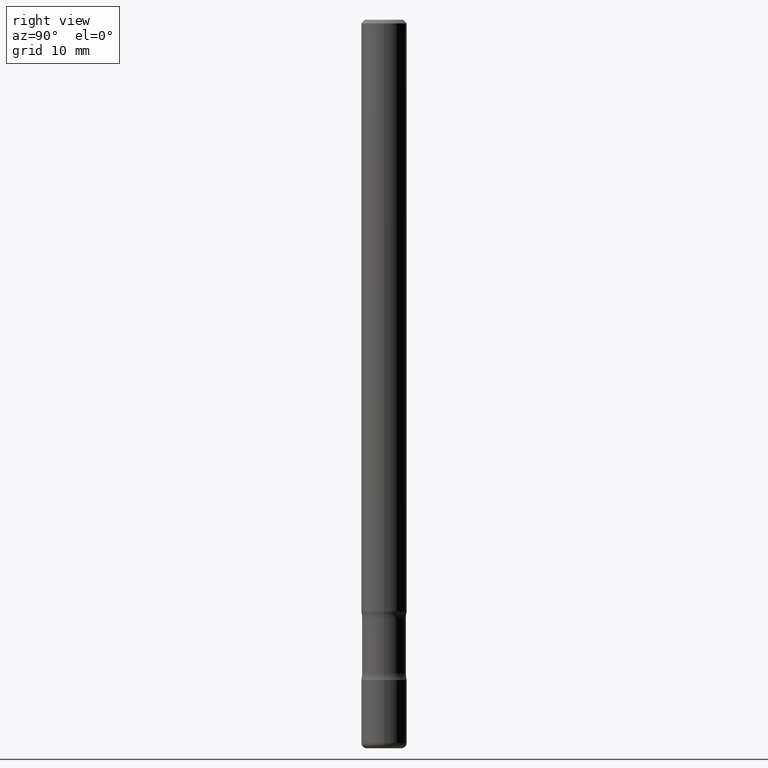
[diagram: clean part render]
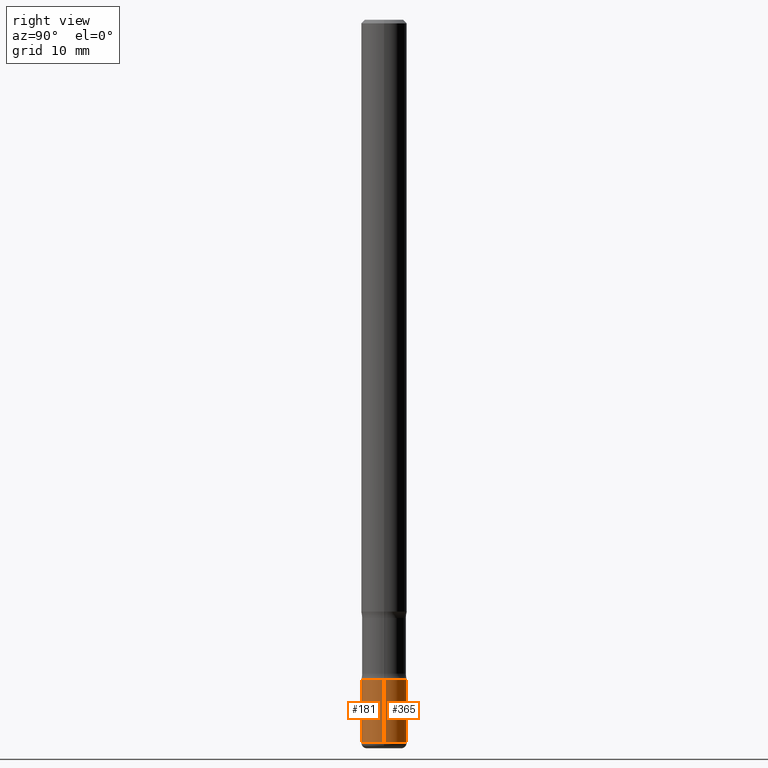
[diagram: same view with one multi-face feature highlighted, each face labeled with its STEP entity id]
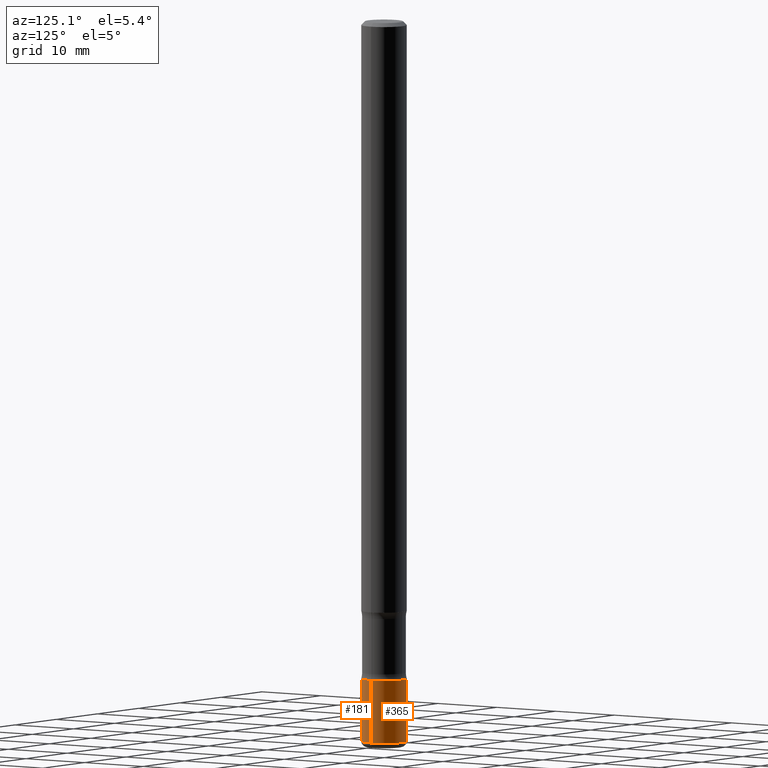
[diagram: same view with one multi-face feature highlighted, each face labeled with its STEP entity id]
A machine part, right view. The highlighted faces form ONE feature: a constant-radius fillet chain: 2 tangent blend faces with common blend radius 3.175 mm. The faces share edges in the B-rep.
A second angle (auxiliary view) of the same feature is appended — it is thin or edge-on in the first view.
Their STEP definitions:
[1] entity #181 (Cylinder):
#14 = EDGE_CURVE ( 'NONE', #263, #758, #792, .T. ) ;
#99 = VERTEX_POINT ( 'NONE', #607 ) ;
#101 = DIRECTION ( 'NONE',  ( 1.000000000000000000, -6.982962677686266711E-15, 4.876176775795935793E-29 ) ) ;
#118 = DIRECTION ( 'NONE',  ( -2.445468806185136597E-29, 3.491481338843145583E-15, 1.000000000000000000 ) ) ;
#130 = CIRCLE ( 'NONE', #734, 0.1250000000000000000 ) ;
#146 = DIRECTION ( 'NONE',  ( -2.445468806185136877E-29, 3.491481338843145188E-15, 1.000000000000000000 ) ) ;
#174 = ORIENTED_EDGE ( 'NONE', *, *, #14, .T. ) ;
#181 = ADVANCED_FACE ( 'NONE', ( #555 ), #784, .T. ) ;
#183 = CARTESIAN_POINT ( 'NONE',  ( 0.1249999999999998473, -1.473405124991807072E-14, -3.970000000000000195 ) ) ;
#220 = DIRECTION ( 'NONE',  ( 1.000000000000000000, -6.982962677686262766E-15, 0.000000000000000000 ) ) ;
#259 = LINE ( 'NONE', #456, #462 ) ;
#263 = VERTEX_POINT ( 'NONE', #636 ) ;
#264 = ORIENTED_EDGE ( 'NONE', *, *, #512, .F. ) ;
#276 = CARTESIAN_POINT ( 'NONE',  ( 0.1250000000000000000, -8.728703347107833388E-16, 6.095220969744919741E-30 ) ) ;
#324 = DIRECTION ( 'NONE',  ( 1.000000000000000000, -6.982962677686262766E-15, 0.000000000000000000 ) ) ;
#335 = VECTOR ( 'NONE', #545, 39.37007874015748143 ) ;
#401 = CARTESIAN_POINT ( 'NONE',  ( 8.864824422421120163E-29, -1.265661985330640259E-14, -3.624999999999999556 ) ) ;
#456 = CARTESIAN_POINT ( 'NONE',  ( -0.1250000000000000000, 8.881784197001252323E-16, -6.148668862818632227E-30 ) ) ;
#462 = VECTOR ( 'NONE', #146, 39.37007874015748143 ) ;
#469 = EDGE_CURVE ( 'NONE', #263, #99, #259, .T. ) ;
#512 = EDGE_CURVE ( 'NONE', #99, #640, #130, .T. ) ;
#520 = AXIS2_PLACEMENT_3D ( 'NONE', #776, #774, #324 ) ;
#533 = AXIS2_PLACEMENT_3D ( 'NONE', #542, #740, #101 ) ;
#536 = ORIENTED_EDGE ( 'NONE', *, *, #469, .F. ) ;
#542 = CARTESIAN_POINT ( 'NONE',  ( 0.000000000000000000, 0.000000000000000000, 0.000000000000000000 ) ) ;
#545 = DIRECTION ( 'NONE',  ( -2.445468806185136877E-29, 3.491481338843145188E-15, 1.000000000000000000 ) ) ;
#555 = FACE_OUTER_BOUND ( 'NONE', #690, .T. ) ;
#607 = CARTESIAN_POINT ( 'NONE',  ( -0.1250000000000000000, -1.237072196455672054E-14, -3.624999999999999556 ) ) ;
#618 = CARTESIAN_POINT ( 'NONE',  ( 0.1250000000000000000, -1.352949018801718435E-14, -3.624999999999999556 ) ) ;
#636 = CARTESIAN_POINT ( 'NONE',  ( -0.1249999999999998473, -1.297300249550716373E-14, -3.970000000000000195 ) ) ;
#640 = VERTEX_POINT ( 'NONE', #618 ) ;
#656 = ORIENTED_EDGE ( 'NONE', *, *, #738, .T. ) ;
#690 = EDGE_LOOP ( 'NONE', ( #536, #174, #656, #264 ) ) ;
#734 = AXIS2_PLACEMENT_3D ( 'NONE', #401, #118, #220 ) ;
#738 = EDGE_CURVE ( 'NONE', #758, #640, #799, .T. ) ;
#740 = DIRECTION ( 'NONE',  ( -2.445468806185136597E-29, 3.491481338843145583E-15, 1.000000000000000000 ) ) ;
#758 = VERTEX_POINT ( 'NONE', #183 ) ;
#774 = DIRECTION ( 'NONE',  ( -2.445468806185136597E-29, 3.491481338843145583E-15, 1.000000000000000000 ) ) ;
#776 = CARTESIAN_POINT ( 'NONE',  ( 9.708511160554992872E-29, -1.386118091520728738E-14, -3.970000000000000195 ) ) ;
#784 = CYLINDRICAL_SURFACE ( 'NONE', #533, 0.1250000000000000000 ) ;
#792 = CIRCLE ( 'NONE', #520, 0.1250000000000000000 ) ;
#799 = LINE ( 'NONE', #276, #335 ) ;
[2] entity #365 (Cylinder):
#27 = CARTESIAN_POINT ( 'NONE',  ( 8.864824422421120163E-29, -1.265661985330640259E-14, -3.624999999999999556 ) ) ;
#91 = DIRECTION ( 'NONE',  ( 1.000000000000000000, -6.982962677686262766E-15, 0.000000000000000000 ) ) ;
#97 = CARTESIAN_POINT ( 'NONE',  ( 0.000000000000000000, 0.000000000000000000, 0.000000000000000000 ) ) ;
#99 = VERTEX_POINT ( 'NONE', #607 ) ;
#111 = ORIENTED_EDGE ( 'NONE', *, *, #330, .F. ) ;
#129 = EDGE_LOOP ( 'NONE', ( #688, #501, #111, #730 ) ) ;
#146 = DIRECTION ( 'NONE',  ( -2.445468806185136877E-29, 3.491481338843145188E-15, 1.000000000000000000 ) ) ;
#179 = AXIS2_PLACEMENT_3D ( 'NONE', #97, #593, #770 ) ;
#183 = CARTESIAN_POINT ( 'NONE',  ( 0.1249999999999998473, -1.473405124991807072E-14, -3.970000000000000195 ) ) ;
#186 = CIRCLE ( 'NONE', #638, 0.1250000000000000000 ) ;
#209 = DIRECTION ( 'NONE',  ( -2.445468806185136597E-29, 3.491481338843145583E-15, 1.000000000000000000 ) ) ;
#259 = LINE ( 'NONE', #456, #462 ) ;
#263 = VERTEX_POINT ( 'NONE', #636 ) ;
#276 = CARTESIAN_POINT ( 'NONE',  ( 0.1250000000000000000, -8.728703347107833388E-16, 6.095220969744919741E-30 ) ) ;
#284 = AXIS2_PLACEMENT_3D ( 'NONE', #479, #782, #783 ) ;
#330 = EDGE_CURVE ( 'NONE', #640, #99, #186, .T. ) ;
#335 = VECTOR ( 'NONE', #545, 39.37007874015748143 ) ;
#365 = ADVANCED_FACE ( 'NONE', ( #393 ), #546, .T. ) ;
#393 = FACE_OUTER_BOUND ( 'NONE', #129, .T. ) ;
#456 = CARTESIAN_POINT ( 'NONE',  ( -0.1250000000000000000, 8.881784197001252323E-16, -6.148668862818632227E-30 ) ) ;
#462 = VECTOR ( 'NONE', #146, 39.37007874015748143 ) ;
#469 = EDGE_CURVE ( 'NONE', #263, #99, #259, .T. ) ;
#479 = CARTESIAN_POINT ( 'NONE',  ( 9.708511160554992872E-29, -1.386118091520728738E-14, -3.970000000000000195 ) ) ;
#501 = ORIENTED_EDGE ( 'NONE', *, *, #469, .T. ) ;
#545 = DIRECTION ( 'NONE',  ( -2.445468806185136877E-29, 3.491481338843145188E-15, 1.000000000000000000 ) ) ;
#546 = CYLINDRICAL_SURFACE ( 'NONE', #179, 0.1250000000000000000 ) ;
#566 = EDGE_CURVE ( 'NONE', #758, #263, #591, .T. ) ;
#591 = CIRCLE ( 'NONE', #284, 0.1250000000000000000 ) ;
#593 = DIRECTION ( 'NONE',  ( -2.445468806185136597E-29, 3.491481338843145583E-15, 1.000000000000000000 ) ) ;
#607 = CARTESIAN_POINT ( 'NONE',  ( -0.1250000000000000000, -1.237072196455672054E-14, -3.624999999999999556 ) ) ;
#618 = CARTESIAN_POINT ( 'NONE',  ( 0.1250000000000000000, -1.352949018801718435E-14, -3.624999999999999556 ) ) ;
#636 = CARTESIAN_POINT ( 'NONE',  ( -0.1249999999999998473, -1.297300249550716373E-14, -3.970000000000000195 ) ) ;
#638 = AXIS2_PLACEMENT_3D ( 'NONE', #27, #209, #91 ) ;
#640 = VERTEX_POINT ( 'NONE', #618 ) ;
#688 = ORIENTED_EDGE ( 'NONE', *, *, #566, .T. ) ;
#730 = ORIENTED_EDGE ( 'NONE', *, *, #738, .F. ) ;
#738 = EDGE_CURVE ( 'NONE', #758, #640, #799, .T. ) ;
#758 = VERTEX_POINT ( 'NONE', #183 ) ;
#770 = DIRECTION ( 'NONE',  ( 1.000000000000000000, -6.982962677686266711E-15, 4.876176775795935793E-29 ) ) ;
#782 = DIRECTION ( 'NONE',  ( -2.445468806185136597E-29, 3.491481338843145583E-15, 1.000000000000000000 ) ) ;
#783 = DIRECTION ( 'NONE',  ( 1.000000000000000000, -6.982962677686262766E-15, 0.000000000000000000 ) ) ;
#799 = LINE ( 'NONE', #276, #335 ) ;